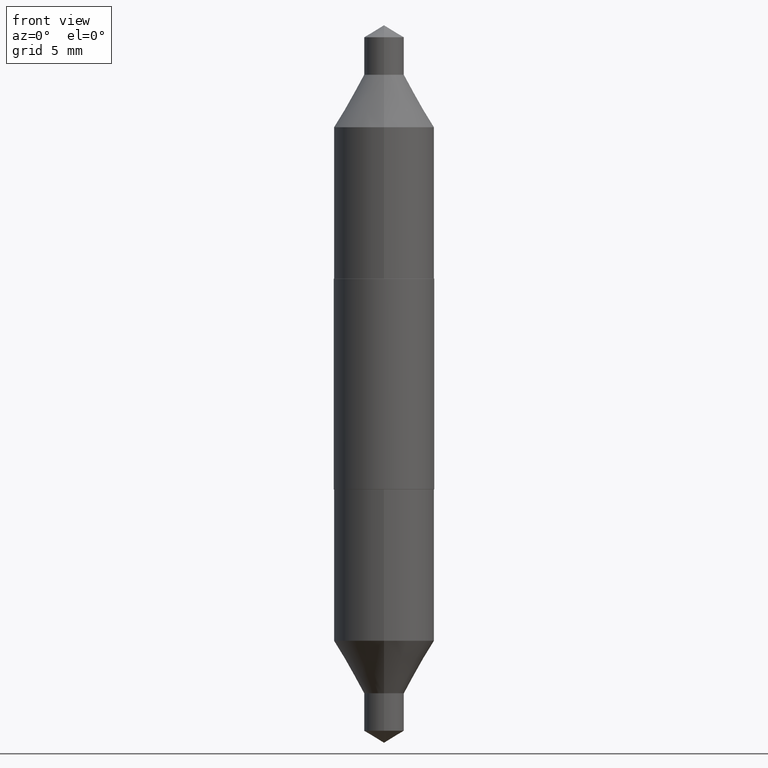
[diagram: clean part render]
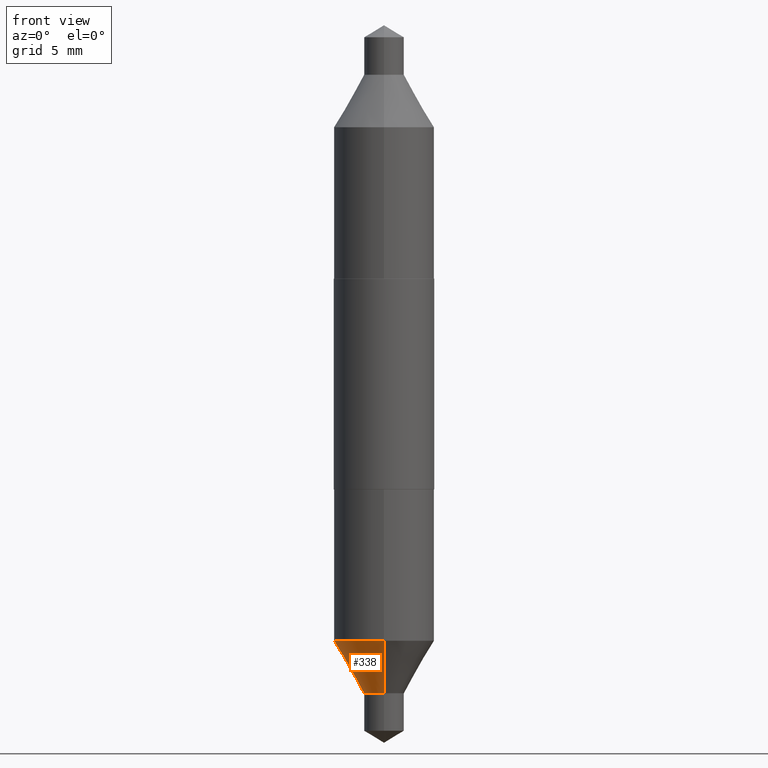
[diagram: same view with one face highlighted and labeled with its STEP entity id]
A machine part, front view. The second image highlights one B-rep face of the part: STEP entity #338.
In plain terms, the highlighted conical surface has half-angle 30 deg.
Its self-contained STEP definition (entity closure, byte-faithful):
#29 = VECTOR ( 'NONE', #250, 39.37007874015748854 ) ;
#87 = DIRECTION ( 'NONE',  ( -6.982962677686265922E-15, -1.000000000000000000, 3.304654831045475864E-15 ) ) ;
#110 = AXIS2_PLACEMENT_3D ( 'NONE', #165, #317, #279 ) ;
#121 = CARTESIAN_POINT ( 'NONE',  ( -3.435617637421457394E-16, -0.04920000000000267909, -0.7629999999999999005 ) ) ;
#123 = ORIENTED_EDGE ( 'NONE', *, *, #171, .T. ) ;
#143 = EDGE_CURVE ( 'NONE', #267, #167, #507, .T. ) ;
#161 = DIRECTION ( 'NONE',  ( -6.982962677686265922E-15, -1.000000000000000000, 2.776268286244169687E-15 ) ) ;
#165 = CARTESIAN_POINT ( 'NONE',  ( 1.859010320823943778E-29, -2.673856218976857578E-15, -0.7630000000000000115 ) ) ;
#167 = VERTEX_POINT ( 'NONE', #630 ) ;
#171 = EDGE_CURVE ( 'NONE', #489, #331, #639, .T. ) ;
#180 = CIRCLE ( 'NONE', #659, 0.1240000000000001379 ) ;
#185 = EDGE_LOOP ( 'NONE', ( #416, #307, #123, #355 ) ) ;
#195 = CONICAL_SURFACE ( 'NONE', #206, 0.04920000000000000762, 0.5235987755982929315 ) ;
#206 = AXIS2_PLACEMENT_3D ( 'NONE', #374, #215, #161 ) ;
#215 = DIRECTION ( 'NONE',  ( -2.431786145558266380E-29, 3.511075687629503191E-15, 1.000000000000000000 ) ) ;
#225 = EDGE_CURVE ( 'NONE', #167, #331, #180, .T. ) ;
#250 = DIRECTION ( 'NONE',  ( 3.552713678800443343E-15, 0.4999999999999979461, 0.8660254037844399289 ) ) ;
#263 = CARTESIAN_POINT ( 'NONE',  ( 3.495870259939901518E-16, 0.04919999999999733614, -0.7630000000000001226 ) ) ;
#267 = VERTEX_POINT ( 'NONE', #263 ) ;
#279 = DIRECTION ( 'NONE',  ( -6.982962677686265922E-15, -1.000000000000000000, 2.776268286244169687E-15 ) ) ;
#307 = ORIENTED_EDGE ( 'NONE', *, *, #389, .T. ) ;
#317 = DIRECTION ( 'NONE',  ( -2.431786145558266380E-29, 3.511075687629503191E-15, 1.000000000000000000 ) ) ;
#322 = CARTESIAN_POINT ( 'NONE',  ( -8.658873720330824348E-16, -0.1240000000000023583, -0.6334425995938456344 ) ) ;
#331 = VERTEX_POINT ( 'NONE', #322 ) ;
#338 = ADVANCED_FACE ( 'NONE', ( #438 ), #195, .T. ) ;
#355 = ORIENTED_EDGE ( 'NONE', *, *, #225, .F. ) ;
#360 = DIRECTION ( 'NONE',  ( -2.431786145558266380E-29, 3.511075687629503191E-15, 1.000000000000000000 ) ) ;
#372 = CIRCLE ( 'NONE', #110, 0.04920000000000000762 ) ;
#374 = CARTESIAN_POINT ( 'NONE',  ( 1.859010320823943778E-29, -2.673856218976857578E-15, -0.7630000000000000115 ) ) ;
#389 = EDGE_CURVE ( 'NONE', #267, #489, #372, .T. ) ;
#416 = ORIENTED_EDGE ( 'NONE', *, *, #143, .F. ) ;
#431 = VECTOR ( 'NONE', #683, 39.37007874015748143 ) ;
#438 = FACE_OUTER_BOUND ( 'NONE', #185, .T. ) ;
#468 = CARTESIAN_POINT ( 'NONE',  ( 1.543954429461713444E-29, -2.218970380258330031E-15, -0.6334425995938459675 ) ) ;
#489 = VERTEX_POINT ( 'NONE', #121 ) ;
#507 = LINE ( 'NONE', #519, #29 ) ;
#519 = CARTESIAN_POINT ( 'NONE',  ( 3.495870259939878345E-16, 0.04919999999999733614, -0.7630000000000001226 ) ) ;
#576 = CARTESIAN_POINT ( 'NONE',  ( -3.435617637421457394E-16, -0.04920000000000267909, -0.7629999999999999005 ) ) ;
#630 = CARTESIAN_POINT ( 'NONE',  ( 8.810729923425355640E-16, 0.1239999999999979174, -0.6334425995938464116 ) ) ;
#639 = LINE ( 'NONE', #576, #431 ) ;
#659 = AXIS2_PLACEMENT_3D ( 'NONE', #468, #360, #87 ) ;
#683 = DIRECTION ( 'NONE',  ( -3.491481338843117578E-15, -0.4999999999999917843, 0.8660254037844432595 ) ) ;